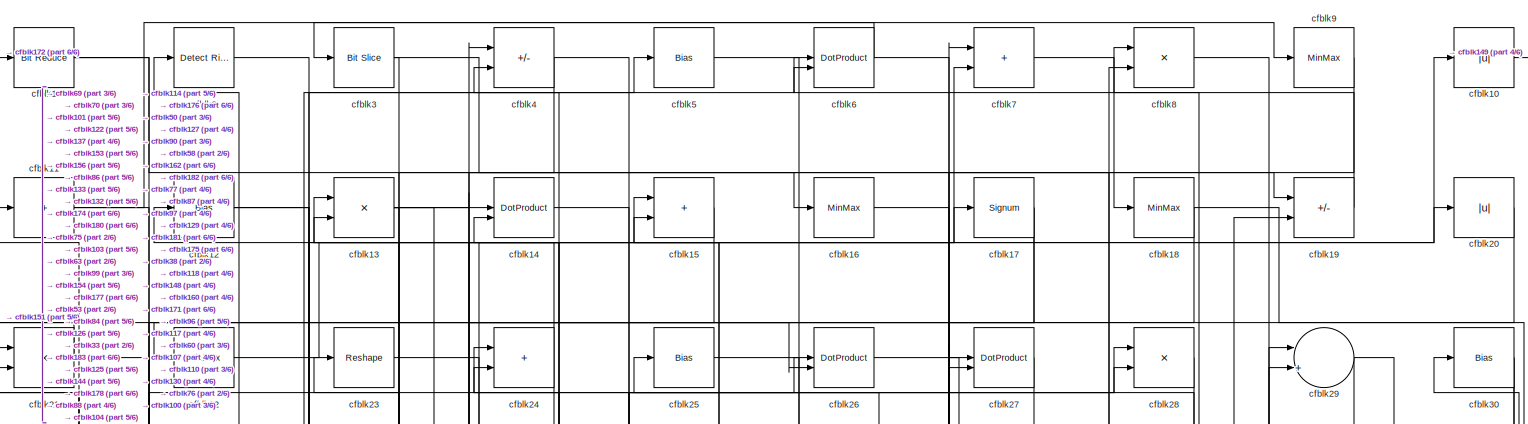
[diagram: root canvas - part 1/6, full width, top band]
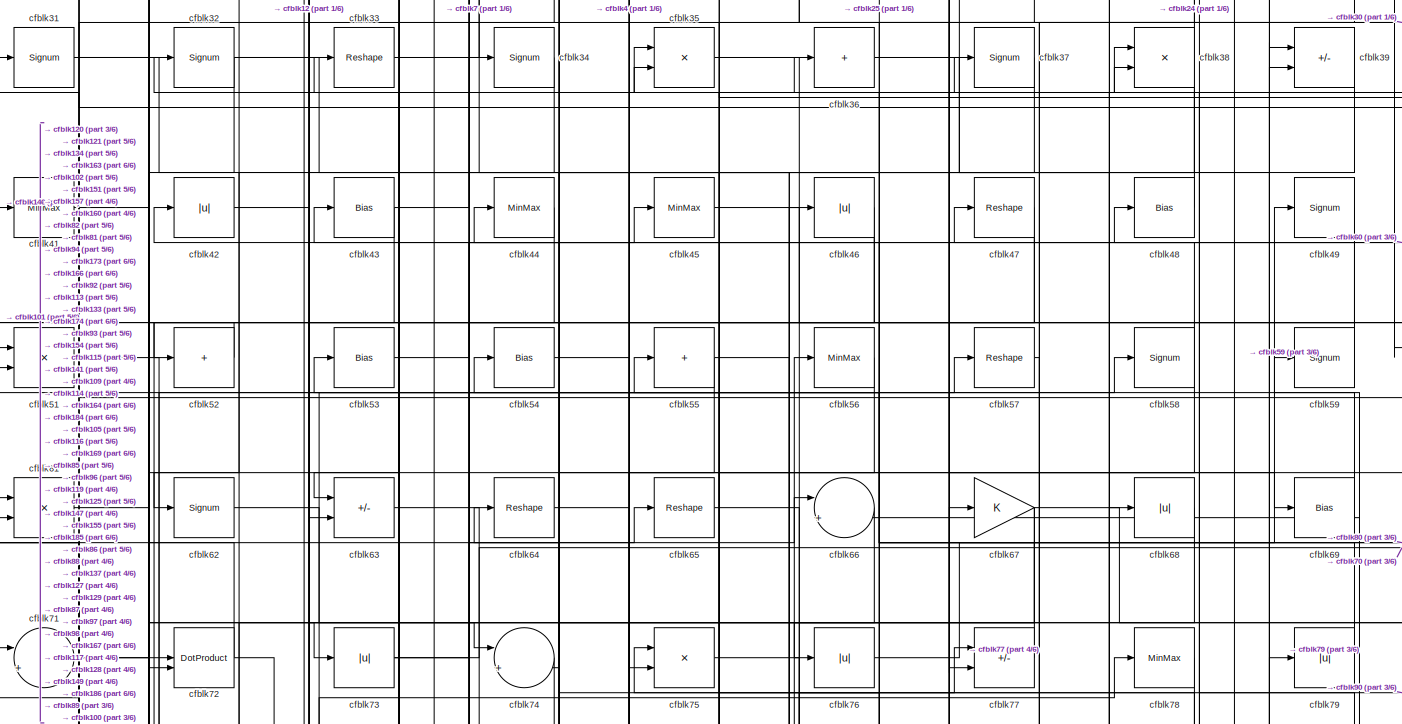
[diagram: root canvas - part 2/6, full width, top band]
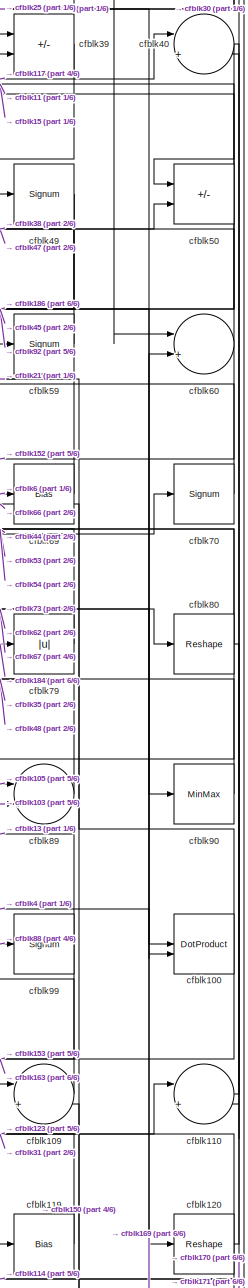
[diagram: root canvas - part 3/6, middle right region]
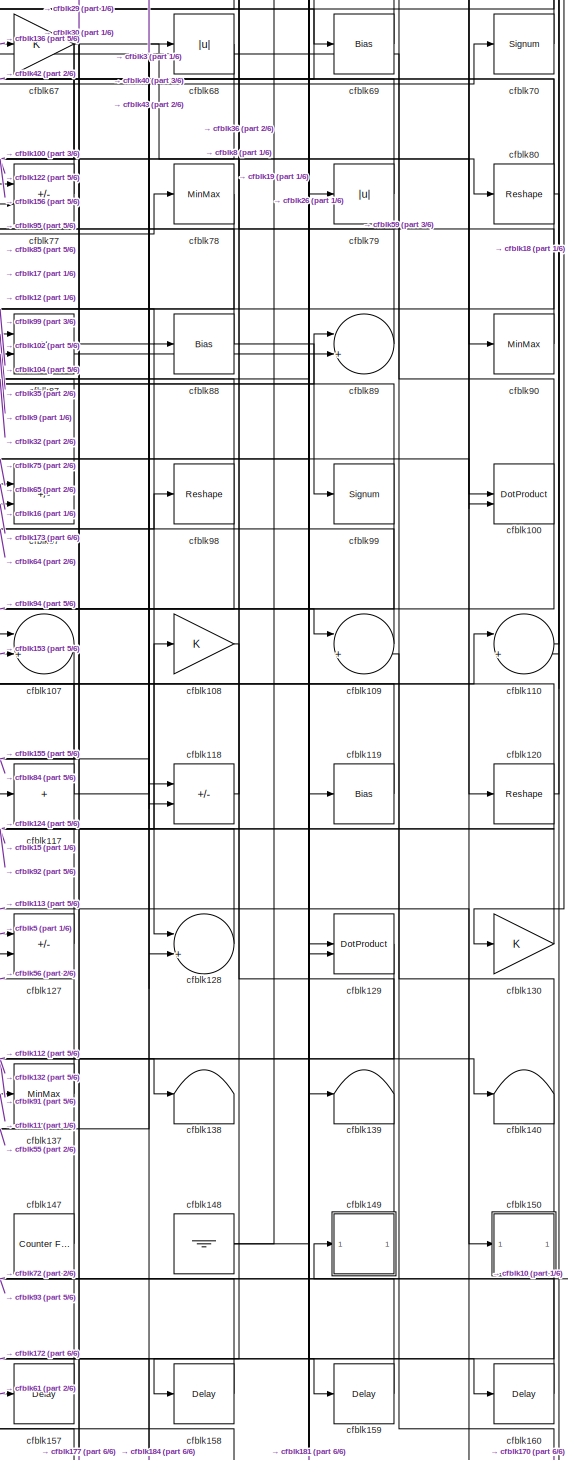
[diagram: root canvas - part 4/6, middle right region]
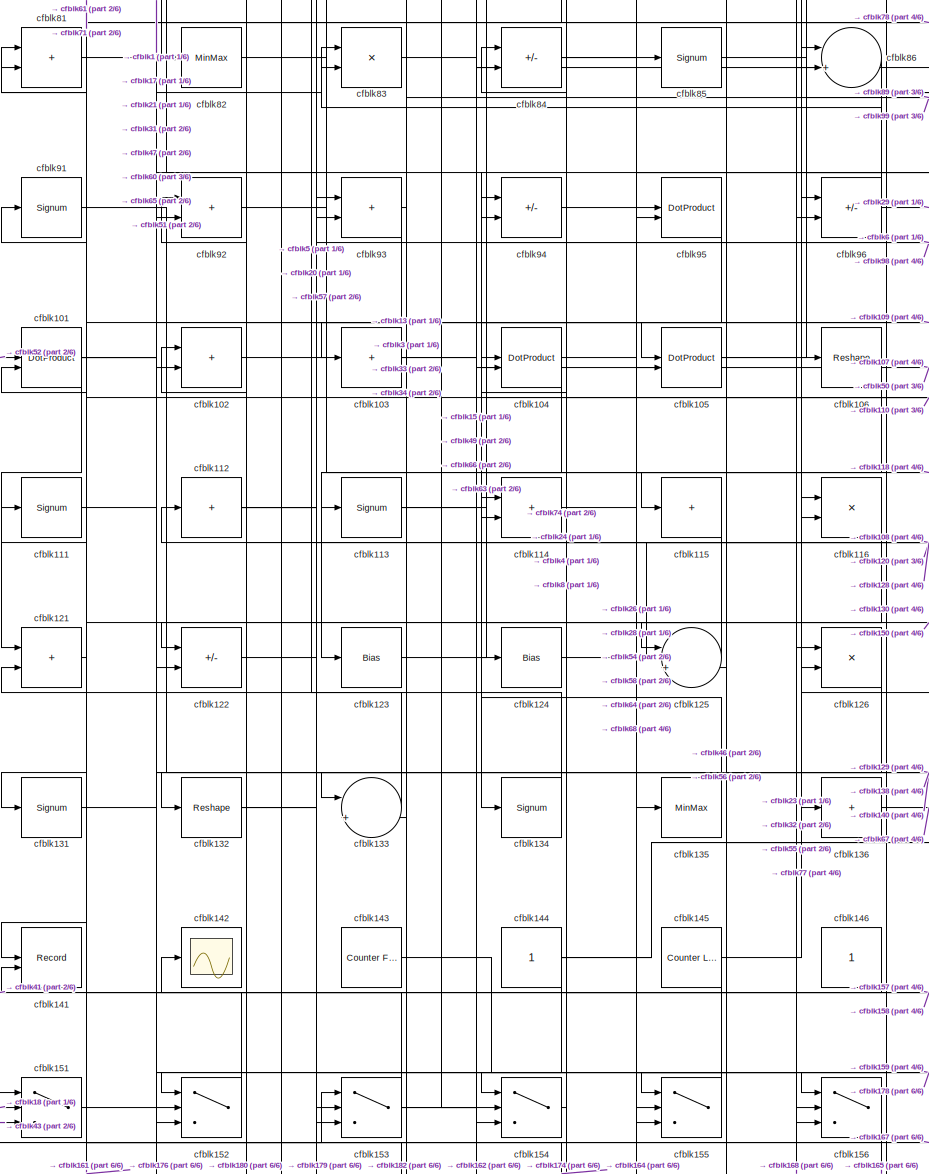
[diagram: root canvas - part 5/6, middle left region]
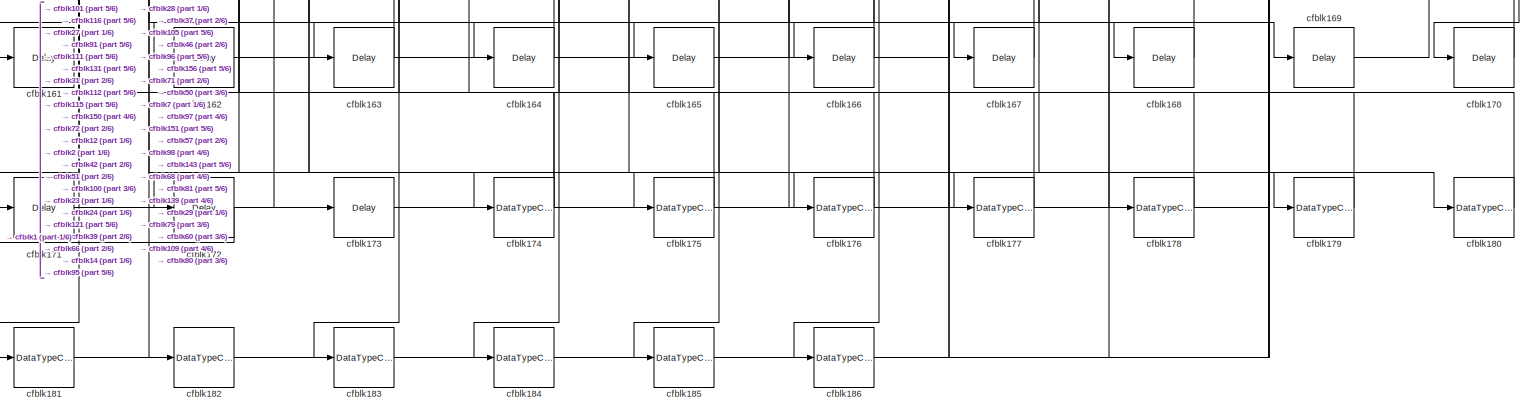
[diagram: root canvas - part 6/6, full width, bottom band]
MODEL slx_8a4ba8a4b382
KIND model
CONFIG AbsTol = auto
CONFIG EnableMultiTasking = off
CONFIG FixedStep = auto
CONFIG MaxStep = auto
CONFIG MinStep = auto
CONFIG RelTol = 1e-3
CONFIG SampleTimeConstraint = Unconstrained
CONFIG SolverName = VariableStepAuto
CONFIG StartTime = 0.0
CONFIG StopTime = 10.0
BLOCK [Reference] cfblk1  REF=hdlsllib/Logic and Bit
Operations/Bit Reduce
  SourceBlock = hdlsllib/Logic and Bit\nOperations/Bit Reduce
  SourceType = Bit Reduce
BLOCK [Abs] cfblk10
  SaturateOnIntegerOverflow = off
BLOCK [DotProduct] cfblk100
  OutDataTypeStr = Inherit: Inherit via internal rule
BLOCK [DotProduct] cfblk101
  OutDataTypeStr = Inherit: Inherit via internal rule
BLOCK [Sum] cfblk102
  IconShape = rectangular
BLOCK [Sum] cfblk103
  IconShape = rectangular
  Inputs = +
BLOCK [DotProduct] cfblk104
  OutDataTypeStr = Inherit: Inherit via internal rule
BLOCK [DotProduct] cfblk105
  OutDataTypeStr = Inherit: Inherit via internal rule
BLOCK [Reshape] cfblk106
BLOCK [Sum] cfblk107
  Inputs = |++
BLOCK [Gain] cfblk108
BLOCK [Sum] cfblk109
  Inputs = |++
BLOCK [Sum] cfblk11
  IconShape = rectangular
  Inputs = +
BLOCK [Sum] cfblk110
  Inputs = |++
BLOCK [Signum] cfblk111
BLOCK [Sum] cfblk112
  IconShape = rectangular
  Inputs = +
BLOCK [Signum] cfblk113
BLOCK [Sum] cfblk114
  IconShape = rectangular
BLOCK [Sum] cfblk115
  IconShape = rectangular
  Inputs = +
BLOCK [Product] cfblk116
  Inputs = */
  RndMeth = Zero
  SaturateOnIntegerOverflow = on
BLOCK [Sum] cfblk117
  IconShape = rectangular
  Inputs = +
BLOCK [Sum] cfblk118
  IconShape = rectangular
  Inputs = +-
BLOCK [Bias] cfblk119
  Bias = 0.0
  SaturateOnIntegerOverflow = off
BLOCK [Bias] cfblk12
  Bias = 0.0
  SaturateOnIntegerOverflow = off
BLOCK [Reshape] cfblk120
BLOCK [Sum] cfblk121
  IconShape = rectangular
BLOCK [Sum] cfblk122
  IconShape = rectangular
  Inputs = +-
BLOCK [Bias] cfblk123
  Bias = 0.0
  SaturateOnIntegerOverflow = off
BLOCK [Bias] cfblk124
  Bias = 0.0
  SaturateOnIntegerOverflow = off
BLOCK [Sum] cfblk125
  Inputs = |++
BLOCK [Product] cfblk126
  Inputs = */
  RndMeth = Zero
  SaturateOnIntegerOverflow = on
BLOCK [Sum] cfblk127
  IconShape = rectangular
  Inputs = +-
BLOCK [Sum] cfblk128
  Inputs = |++
BLOCK [DotProduct] cfblk129
  OutDataTypeStr = Inherit: Inherit via internal rule
BLOCK [Product] cfblk13
  Inputs = */
  RndMeth = Zero
  SaturateOnIntegerOverflow = on
BLOCK [Gain] cfblk130
BLOCK [Signum] cfblk131
BLOCK [Reshape] cfblk132
BLOCK [Sum] cfblk133
  Inputs = |++
BLOCK [Signum] cfblk134
BLOCK [MinMax] cfblk135
BLOCK [Sum] cfblk136
  IconShape = rectangular
  Inputs = +
BLOCK [MinMax] cfblk137
BLOCK [Terminator] cfblk138
BLOCK [Terminator] cfblk139
BLOCK [DotProduct] cfblk14
  OutDataTypeStr = Inherit: Inherit via internal rule
BLOCK [Terminator] cfblk140
BLOCK [Record] cfblk141
  CompatibilityTag = XY
  FileSettingsInternal = {"entries":[{"content":{"excelSettings":{"content":{},"type":"Streamout.ExcelSettings"}},"type":"Streamout.FileSettingStorage","uuid":""}],"packageUris":["http:\/\/schema.mathworks.com\/mf0\/streamout_blocks\/R2020a"],"version":"1.0"}
  Layout = [1 1]
  SignalsInternal = {"entries":[{"content":{"signals":[{"content":{"blockPath":[],"dimensions":[1],"domain":"","lineColor":"#a2142f","plots":[1],"port":1,"signalID":3036,"signalName":"XY Graph:1"},"type":"RecordBlkView.Signal","uuid":""},{"content":{"blockPath":[],"dimensions":[1],"domain":"","lineColor":"#139fff","plots":[1],"port":2,"signalID":3039,"signalName":"XY Graph:2"},"type":"RecordBlkView.Signal","uuid":""}...<+146ch>
  VisualizationBindings = {"xyplotplugin":{"info":[{"series":[{"bindingParametersList":[{"parameter":"X-Axis","signalID":3036,"signalName":"XY Graph:1"},{"parameter":"Y-Axis","signalID":3039,"signalName":"XY Graph:2"}],"seriesID":38226}],"subplotID":1}]}}
  st = -1
BLOCK [Scope] cfblk142
  Floating = off
  NumInputPorts = 1
  ScopeSpecificationString = Simulink.scopes.TimeScopeBlockCfg('CurrentConfiguration', extmgr.ConfigurationSet(extmgr.Configuration('Core','General UI',true),extmgr.Configuration('Core','Source UI',true),extmgr.Configuration('Sources','WiredSimulink',true,'DataLoggingVariableName','ScopeData2','DataLoggingSaveFormat','Array','DataLoggingLimitDataPoints',true,'DataLoggingDecimation','1'),extmgr.Configuration('Visuals','Time Do...<+868ch>
BLOCK [Reference] cfblk143  REF=hdlsllib/Sources/Counter
Free-Running
  SourceBlock = hdlsllib/Sources/Counter\nFree-Running
  SourceType = Counter Free-Running
BLOCK [Constant] cfblk144
  SampleTime = -1
BLOCK [Reference] cfblk145  REF=hdlsllib/Sources/Counter
Limited
  SourceBlock = hdlsllib/Sources/Counter\nLimited
  SourceType = Counter Limited
BLOCK [Constant] cfblk146
  SampleTime = -1
BLOCK [Reference] cfblk147  REF=hdlsllib/Sources/Counter
Free-Running
  SourceBlock = hdlsllib/Sources/Counter\nFree-Running
  SourceType = Counter Free-Running
BLOCK [Ground] cfblk148
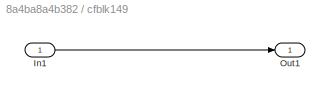
BLOCK [SubSystem] cfblk149
  LibrarySourceBlock = hdlsllib/Ports &\nSubsystems/Subsystem
BLOCK [Inport] cfblk149/In1
BLOCK [Outport] cfblk149/Out1
BLOCK [Sum] cfblk15
  IconShape = rectangular
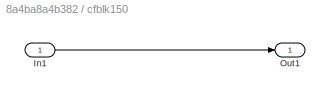
BLOCK [SubSystem] cfblk150
  LibrarySourceBlock = hdlsllib/Ports &\nSubsystems/Subsystem
BLOCK [Inport] cfblk150/In1
BLOCK [Outport] cfblk150/Out1
BLOCK [Switch] cfblk151
  InputSameDT = off
  SaturateOnIntegerOverflow = off
BLOCK [Switch] cfblk152
  InputSameDT = off
  SaturateOnIntegerOverflow = off
BLOCK [Switch] cfblk153
  InputSameDT = off
  SaturateOnIntegerOverflow = off
BLOCK [Switch] cfblk154
  InputSameDT = off
  SaturateOnIntegerOverflow = off
BLOCK [Switch] cfblk155
  InputSameDT = off
  SaturateOnIntegerOverflow = off
BLOCK [Switch] cfblk156
  InputSameDT = off
  SaturateOnIntegerOverflow = off
BLOCK [Delay] cfblk157
  InputPortMap = u0
  SampleTime = 1
BLOCK [Delay] cfblk158
  InputPortMap = u0
  SampleTime = 1
BLOCK [Delay] cfblk159
  InputPortMap = u0
  SampleTime = 1
BLOCK [MinMax] cfblk16
BLOCK [Delay] cfblk160
  InputPortMap = u0
  SampleTime = 1
BLOCK [Delay] cfblk161
  InputPortMap = u0
  SampleTime = 1
BLOCK [Delay] cfblk162
  InputPortMap = u0
  SampleTime = 1
BLOCK [Delay] cfblk163
  InputPortMap = u0
  SampleTime = 1
BLOCK [Delay] cfblk164
  InputPortMap = u0
  SampleTime = 1
BLOCK [Delay] cfblk165
  InputPortMap = u0
  SampleTime = 1
BLOCK [Delay] cfblk166
  InputPortMap = u0
  SampleTime = 1
BLOCK [Delay] cfblk167
  InputPortMap = u0
  SampleTime = 1
BLOCK [Delay] cfblk168
  InputPortMap = u0
  SampleTime = 1
BLOCK [Delay] cfblk169
  InputPortMap = u0
  SampleTime = 1
BLOCK [Signum] cfblk17
BLOCK [Delay] cfblk170
  InputPortMap = u0
  SampleTime = 1
BLOCK [Delay] cfblk171
  InputPortMap = u0
  SampleTime = 1
BLOCK [Delay] cfblk172
  InputPortMap = u0
  SampleTime = 1
BLOCK [Delay] cfblk173
  InputPortMap = u0
  SampleTime = 1
BLOCK [DataTypeConversion] cfblk174
  RndMeth = Floor
  SaturateOnIntegerOverflow = off
BLOCK [DataTypeConversion] cfblk175
  OutDataTypeStr = uint8
  RndMeth = Floor
  SaturateOnIntegerOverflow = off
BLOCK [DataTypeConversion] cfblk176
  OutDataTypeStr = uint8
  RndMeth = Floor
  SaturateOnIntegerOverflow = off
BLOCK [DataTypeConversion] cfblk177
  OutDataTypeStr = uint8
  RndMeth = Floor
  SaturateOnIntegerOverflow = off
BLOCK [DataTypeConversion] cfblk178
  OutDataTypeStr = uint8
  RndMeth = Floor
  SaturateOnIntegerOverflow = off
BLOCK [DataTypeConversion] cfblk179
  OutDataTypeStr = uint8
  RndMeth = Floor
  SaturateOnIntegerOverflow = off
BLOCK [MinMax] cfblk18
BLOCK [DataTypeConversion] cfblk180
  OutDataTypeStr = uint8
  RndMeth = Floor
  SaturateOnIntegerOverflow = off
BLOCK [DataTypeConversion] cfblk181
  OutDataTypeStr = uint8
  RndMeth = Floor
  SaturateOnIntegerOverflow = off
BLOCK [DataTypeConversion] cfblk182
  OutDataTypeStr = uint8
  RndMeth = Floor
  SaturateOnIntegerOverflow = off
BLOCK [DataTypeConversion] cfblk183
  OutDataTypeStr = uint8
  RndMeth = Floor
  SaturateOnIntegerOverflow = off
BLOCK [DataTypeConversion] cfblk184
  RndMeth = Floor
  SaturateOnIntegerOverflow = off
BLOCK [DataTypeConversion] cfblk185
  OutDataTypeStr = uint8
  RndMeth = Floor
  SaturateOnIntegerOverflow = off
BLOCK [DataTypeConversion] cfblk186
  OutDataTypeStr = uint8
  RndMeth = Floor
  SaturateOnIntegerOverflow = off
BLOCK [Sum] cfblk19
  IconShape = rectangular
  Inputs = +-
BLOCK [Reference] cfblk2  REF=hdlsllib/Logic and Bit
Operations/Detect Rise
Nonnegative
  SourceBlock = hdlsllib/Logic and Bit\nOperations/Detect Rise\nNonnegative
  SourceType = Detect Rise Nonnegative
BLOCK [Abs] cfblk20
  SaturateOnIntegerOverflow = off
BLOCK [Product] cfblk21
  Inputs = */
  RndMeth = Zero
  SaturateOnIntegerOverflow = on
BLOCK [MinMax] cfblk22
BLOCK [Reshape] cfblk23
BLOCK [Sum] cfblk24
  IconShape = rectangular
BLOCK [Bias] cfblk25
  Bias = 0.0
  SaturateOnIntegerOverflow = off
BLOCK [DotProduct] cfblk26
  OutDataTypeStr = Inherit: Inherit via internal rule
BLOCK [DotProduct] cfblk27
  OutDataTypeStr = Inherit: Inherit via internal rule
BLOCK [Product] cfblk28
  Inputs = */
  RndMeth = Zero
  SaturateOnIntegerOverflow = on
BLOCK [Sum] cfblk29
  Inputs = |++
BLOCK [Reference] cfblk3  REF=hdlsllib/Logic and Bit
Operations/Bit Slice
  SourceBlock = hdlsllib/Logic and Bit\nOperations/Bit Slice
  SourceType = Bit Slice
BLOCK [Bias] cfblk30
  Bias = 0.0
  SaturateOnIntegerOverflow = off
BLOCK [Signum] cfblk31
BLOCK [Signum] cfblk32
BLOCK [Reshape] cfblk33
BLOCK [Signum] cfblk34
BLOCK [Product] cfblk35
  Inputs = */
  RndMeth = Zero
  SaturateOnIntegerOverflow = on
BLOCK [Sum] cfblk36
  IconShape = rectangular
  Inputs = +
BLOCK [Signum] cfblk37
BLOCK [Product] cfblk38
  Inputs = */
  RndMeth = Zero
  SaturateOnIntegerOverflow = on
BLOCK [Sum] cfblk39
  IconShape = rectangular
  Inputs = +-
BLOCK [Sum] cfblk4
  IconShape = rectangular
  Inputs = +-
BLOCK [Sum] cfblk40
  Inputs = |++
BLOCK [MinMax] cfblk41
BLOCK [Abs] cfblk42
  SaturateOnIntegerOverflow = off
BLOCK [Bias] cfblk43
  Bias = 0.0
  SaturateOnIntegerOverflow = off
BLOCK [MinMax] cfblk44
BLOCK [MinMax] cfblk45
BLOCK [Abs] cfblk46
  SaturateOnIntegerOverflow = off
BLOCK [Reshape] cfblk47
BLOCK [Bias] cfblk48
  Bias = 0.0
  SaturateOnIntegerOverflow = off
BLOCK [Signum] cfblk49
BLOCK [Bias] cfblk5
  Bias = 0.0
  SaturateOnIntegerOverflow = off
BLOCK [Sum] cfblk50
  IconShape = rectangular
  Inputs = +-
BLOCK [Product] cfblk51
  Inputs = */
  RndMeth = Zero
  SaturateOnIntegerOverflow = on
BLOCK [Sum] cfblk52
  IconShape = rectangular
  Inputs = +
BLOCK [Bias] cfblk53
  Bias = 0.0
  SaturateOnIntegerOverflow = off
BLOCK [Bias] cfblk54
  Bias = 0.0
  SaturateOnIntegerOverflow = off
BLOCK [Sum] cfblk55
  IconShape = rectangular
  Inputs = +
BLOCK [MinMax] cfblk56
BLOCK [Reshape] cfblk57
BLOCK [Signum] cfblk58
BLOCK [Signum] cfblk59
BLOCK [DotProduct] cfblk6
  OutDataTypeStr = Inherit: Inherit via internal rule
BLOCK [Sum] cfblk60
  Inputs = |++
BLOCK [Product] cfblk61
  Inputs = */
  RndMeth = Zero
  SaturateOnIntegerOverflow = on
BLOCK [Signum] cfblk62
BLOCK [Sum] cfblk63
  IconShape = rectangular
  Inputs = +-
BLOCK [Reshape] cfblk64
BLOCK [Reshape] cfblk65
BLOCK [Sum] cfblk66
  Inputs = |++
BLOCK [Gain] cfblk67
BLOCK [Abs] cfblk68
  SaturateOnIntegerOverflow = off
BLOCK [Bias] cfblk69
  Bias = 0.0
  SaturateOnIntegerOverflow = off
BLOCK [Sum] cfblk7
  IconShape = rectangular
BLOCK [Signum] cfblk70
BLOCK [Sum] cfblk71
  Inputs = |++
BLOCK [DotProduct] cfblk72
  OutDataTypeStr = Inherit: Inherit via internal rule
BLOCK [Abs] cfblk73
  SaturateOnIntegerOverflow = off
BLOCK [Sum] cfblk74
  Inputs = |++
BLOCK [Product] cfblk75
  Inputs = */
  RndMeth = Zero
  SaturateOnIntegerOverflow = on
BLOCK [Abs] cfblk76
  SaturateOnIntegerOverflow = off
BLOCK [Sum] cfblk77
  IconShape = rectangular
  Inputs = +-
BLOCK [MinMax] cfblk78
BLOCK [Abs] cfblk79
  SaturateOnIntegerOverflow = off
BLOCK [Product] cfblk8
  Inputs = */
  RndMeth = Zero
  SaturateOnIntegerOverflow = on
BLOCK [Reshape] cfblk80
BLOCK [Sum] cfblk81
  IconShape = rectangular
BLOCK [MinMax] cfblk82
BLOCK [Product] cfblk83
  Inputs = */
  RndMeth = Zero
  SaturateOnIntegerOverflow = on
BLOCK [Sum] cfblk84
  IconShape = rectangular
  Inputs = +-
BLOCK [Signum] cfblk85
BLOCK [Sum] cfblk86
  Inputs = |++
BLOCK [Product] cfblk87
  Inputs = */
  RndMeth = Zero
  SaturateOnIntegerOverflow = on
BLOCK [Bias] cfblk88
  Bias = 0.0
  SaturateOnIntegerOverflow = off
BLOCK [Sum] cfblk89
  Inputs = |++
BLOCK [MinMax] cfblk9
BLOCK [MinMax] cfblk90
BLOCK [Signum] cfblk91
BLOCK [Sum] cfblk92
  IconShape = rectangular
BLOCK [Sum] cfblk93
  IconShape = rectangular
BLOCK [Sum] cfblk94
  IconShape = rectangular
  Inputs = +-
BLOCK [DotProduct] cfblk95
  OutDataTypeStr = Inherit: Inherit via internal rule
BLOCK [Sum] cfblk96
  IconShape = rectangular
  Inputs = +-
BLOCK [Sum] cfblk97
  IconShape = rectangular
  Inputs = +-
BLOCK [Reshape] cfblk98
BLOCK [Signum] cfblk99
NET cfblk100:1 -> cfblk163:1, cfblk66:2
NET cfblk101:1 -> cfblk105:1, cfblk121:1, cfblk28:2, cfblk83:1
LINE cfblk102:1 -> cfblk78:1
NET cfblk103:1 -> cfblk17:1, cfblk89:2
NET cfblk104:1 -> cfblk123:1, cfblk28:1
NET cfblk105:1 -> cfblk168:1, cfblk89:1
LINE cfblk106:1 -> cfblk154:1
LINE cfblk107:1 -> cfblk155:2
LINE cfblk108:1 -> cfblk158:1
LINE cfblk109:1 -> cfblk64:1
LINE cfblk10:1 -> cfblk149:1
LINE cfblk110:1 -> cfblk30:1
LINE cfblk111:1 -> cfblk179:1
NET cfblk112:1 -> cfblk116:2, cfblk138:1, cfblk156:2
NET cfblk113:1 -> cfblk150:1, cfblk66:1
LINE cfblk114:1 -> cfblk26:1
LINE cfblk115:1 -> cfblk162:1
NET cfblk116:1 -> cfblk125:1, cfblk161:1
NET cfblk117:1 -> cfblk40:1, cfblk43:1
LINE cfblk118:1 -> cfblk8:1
LINE cfblk119:1 -> cfblk35:1
NET cfblk11:1 -> cfblk137:1, cfblk9:1
NET cfblk120:1 -> cfblk114:2, cfblk31:1, cfblk40:2
LINE cfblk121:1 -> cfblk71:1
LINE cfblk122:1 -> cfblk20:1
LINE cfblk123:1 -> cfblk110:1
LINE cfblk124:1 -> cfblk108:1
LINE cfblk125:1 -> cfblk4:2
LINE cfblk126:1 -> cfblk152:2
LINE cfblk127:1 -> cfblk15:1
LINE cfblk128:1 -> cfblk92:1
LINE cfblk129:1 -> cfblk132:1
NET cfblk12:1 -> cfblk180:1, cfblk75:2
LINE cfblk130:1 -> cfblk102:1
LINE cfblk131:1 -> cfblk182:1
NET cfblk132:1 -> cfblk6:2, cfblk98:1
LINE cfblk133:1 -> cfblk5:1
LINE cfblk134:1 -> cfblk61:2
LINE cfblk135:1 -> cfblk124:1
LINE cfblk136:1 -> cfblk67:1
LINE cfblk137:1 -> cfblk56:1
NET cfblk13:1 -> cfblk133:2, cfblk154:2, cfblk19:1, cfblk26:2
LINE cfblk143:1 -> cfblk178:1
NET cfblk144:1 -> cfblk136:1, cfblk153:3, cfblk24:1, cfblk8:2
NET cfblk145:1 -> cfblk126:2, cfblk155:3
LINE cfblk146:1 -> cfblk41:1
LINE cfblk147:1 -> cfblk55:1
NET cfblk148:1 -> cfblk119:1, cfblk19:2
LINE cfblk149/In1:1 -> cfblk149/Out1:1
LINE cfblk149:1 -> cfblk36:1
LINE cfblk14:1 -> cfblk176:1
LINE cfblk150/In1:1 -> cfblk150/Out1:1
NET cfblk150:1 -> cfblk172:1, cfblk59:1
LINE cfblk151:1 -> cfblk65:1
LINE cfblk152:1 -> cfblk141:2
NET cfblk153:1 -> cfblk107:2, cfblk142:1, cfblk50:2, cfblk81:1
LINE cfblk154:1 -> cfblk84:1
LINE cfblk155:1 -> cfblk61:1
LINE cfblk156:1 -> cfblk165:1
LINE cfblk157:1 -> cfblk94:2
LINE cfblk158:1 -> cfblk104:2
LINE cfblk159:1 -> cfblk93:1
LINE cfblk15:1 -> cfblk84:2
LINE cfblk160:1 -> cfblk72:1
LINE cfblk161:1 -> cfblk101:2
LINE cfblk162:1 -> cfblk7:1
LINE cfblk163:1 -> cfblk51:2
LINE cfblk164:1 -> cfblk121:2
LINE cfblk165:1 -> cfblk96:2
LINE cfblk166:1 -> cfblk71:2
LINE cfblk167:1 -> cfblk151:1
LINE cfblk168:1 -> cfblk81:2
LINE cfblk169:1 -> cfblk60:2
LINE cfblk16:1 -> cfblk97:1
LINE cfblk170:1 -> cfblk109:2
LINE cfblk171:1 -> cfblk29:2
LINE cfblk172:1 -> cfblk1:1
LINE cfblk173:1 -> cfblk97:2
NET cfblk174:1 -> cfblk112:1, cfblk23:1, cfblk46:1
LINE cfblk175:1 -> cfblk2:1
LINE cfblk176:1 -> cfblk91:1
LINE cfblk177:1 -> cfblk14:1
LINE cfblk178:1 -> cfblk14:2
LINE cfblk179:1 -> cfblk95:1
NET cfblk17:1 -> cfblk122:2, cfblk77:2
LINE cfblk180:1 -> cfblk111:1
LINE cfblk181:1 -> cfblk139:1
LINE cfblk182:1 -> cfblk27:1
LINE cfblk183:1 -> cfblk27:2
NET cfblk184:1 -> cfblk68:1, cfblk79:1
LINE cfblk185:1 -> cfblk39:1
LINE cfblk186:1 -> cfblk39:2
NET cfblk18:1 -> cfblk130:1, cfblk151:2
LINE cfblk19:1 -> cfblk6:1
NET cfblk1:1 -> cfblk156:3, cfblk16:1
LINE cfblk20:1 -> cfblk22:1
NET cfblk21:1 -> cfblk153:1, cfblk86:1
LINE cfblk22:1 -> cfblk10:1
LINE cfblk23:1 -> cfblk126:1
NET cfblk24:1 -> cfblk13:2, cfblk183:1
LINE cfblk25:1 -> cfblk90:1
LINE cfblk26:1 -> cfblk129:1
LINE cfblk27:1 -> cfblk181:1
LINE cfblk28:1 -> cfblk175:1
NET cfblk29:1 -> cfblk117:1, cfblk60:1
LINE cfblk2:1 -> cfblk174:1
NET cfblk30:1 -> cfblk107:1, cfblk76:1
NET cfblk31:1 -> cfblk169:1, cfblk85:1
NET cfblk32:1 -> cfblk38:2, cfblk72:2, cfblk86:2
LINE cfblk33:1 -> cfblk7:2
LINE cfblk34:1 -> cfblk113:1
LINE cfblk35:1 -> cfblk87:1
LINE cfblk36:1 -> cfblk128:2
LINE cfblk37:1 -> cfblk185:1
NET cfblk38:1 -> cfblk24:2, cfblk52:1, cfblk74:2
LINE cfblk39:1 -> cfblk184:1
NET cfblk3:1 -> cfblk103:1, cfblk118:1
NET cfblk40:1 -> cfblk110:2, cfblk50:1
LINE cfblk41:1 -> cfblk74:1
LINE cfblk42:1 -> cfblk166:1
NET cfblk43:1 -> cfblk151:3, cfblk34:1
LINE cfblk44:1 -> cfblk63:2
LINE cfblk45:1 -> cfblk120:1
NET cfblk46:1 -> cfblk125:2, cfblk133:1
NET cfblk47:1 -> cfblk102:2, cfblk62:1
LINE cfblk48:1 -> cfblk37:1
NET cfblk49:1 -> cfblk154:3, cfblk82:1
NET cfblk4:1 -> cfblk100:2, cfblk63:1
NET cfblk50:1 -> cfblk11:1, cfblk15:2, cfblk186:1, cfblk92:2
LINE cfblk51:1 -> cfblk94:1
LINE cfblk52:1 -> cfblk101:1
LINE cfblk53:1 -> cfblk4:1
LINE cfblk54:1 -> cfblk116:1
NET cfblk55:1 -> cfblk114:1, cfblk88:1
LINE cfblk56:1 -> cfblk155:1
LINE cfblk57:1 -> cfblk167:1
NET cfblk58:1 -> cfblk105:2, cfblk25:1
LINE cfblk59:1 -> cfblk47:1
LINE cfblk5:1 -> cfblk127:1
NET cfblk60:1 -> cfblk152:3, cfblk38:1
LINE cfblk61:1 -> cfblk157:1
LINE cfblk62:1 -> cfblk80:1
LINE cfblk63:1 -> cfblk115:1
LINE cfblk64:1 -> cfblk96:1
LINE cfblk65:1 -> cfblk129:2
LINE cfblk66:1 -> cfblk164:1
NET cfblk67:1 -> cfblk100:1, cfblk122:1, cfblk156:1
LINE cfblk68:1 -> cfblk95:2
LINE cfblk69:1 -> cfblk21:1
NET cfblk6:1 -> cfblk3:1, cfblk69:1
LINE cfblk70:1 -> cfblk21:2
NET cfblk71:1 -> cfblk73:1, cfblk93:2
NET cfblk72:1 -> cfblk173:1, cfblk51:1
NET cfblk73:1 -> cfblk45:1, cfblk70:1
LINE cfblk74:1 -> cfblk141:1
LINE cfblk75:1 -> cfblk127:2
LINE cfblk76:1 -> cfblk49:1
LINE cfblk77:1 -> cfblk42:1
LINE cfblk78:1 -> cfblk104:1
LINE cfblk79:1 -> cfblk54:1
LINE cfblk7:1 -> cfblk18:1
NET cfblk80:1 -> cfblk170:1, cfblk171:1, cfblk44:1, cfblk53:1
LINE cfblk81:1 -> cfblk58:1
LINE cfblk82:1 -> cfblk135:1
LINE cfblk83:1 -> cfblk106:1
NET cfblk84:1 -> cfblk118:2, cfblk159:1
LINE cfblk85:1 -> cfblk77:1
LINE cfblk86:1 -> cfblk134:1
LINE cfblk87:1 -> cfblk128:1
NET cfblk88:1 -> cfblk12:1, cfblk99:1
LINE cfblk89:1 -> cfblk48:1
LINE cfblk8:1 -> cfblk160:1
LINE cfblk90:1 -> cfblk35:2
LINE cfblk91:1 -> cfblk140:1
LINE cfblk92:1 -> cfblk57:1
NET cfblk93:1 -> cfblk152:1, cfblk33:1
LINE cfblk94:1 -> cfblk109:1
LINE cfblk95:1 -> cfblk131:1
NET cfblk96:1 -> cfblk29:1, cfblk83:2
LINE cfblk97:1 -> cfblk32:1
NET cfblk98:1 -> cfblk177:1, cfblk75:1
NET cfblk99:1 -> cfblk13:1, cfblk153:2
LINE cfblk9:1 -> cfblk87:2
note: NET lines group one-source signal fan-out (src -> all destinations, sorted); 1:1 wires keep LINE
